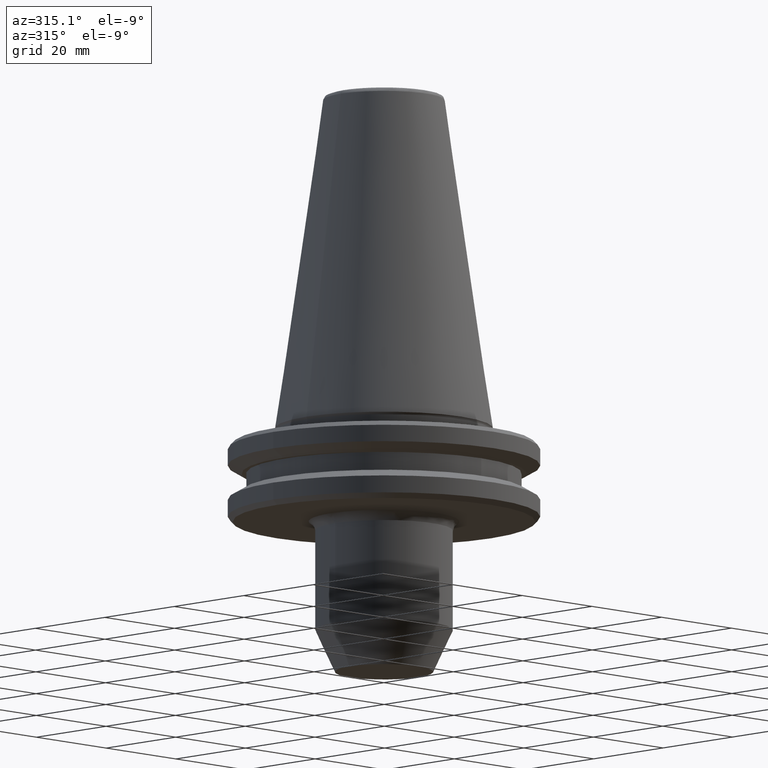
[diagram: clean part render]
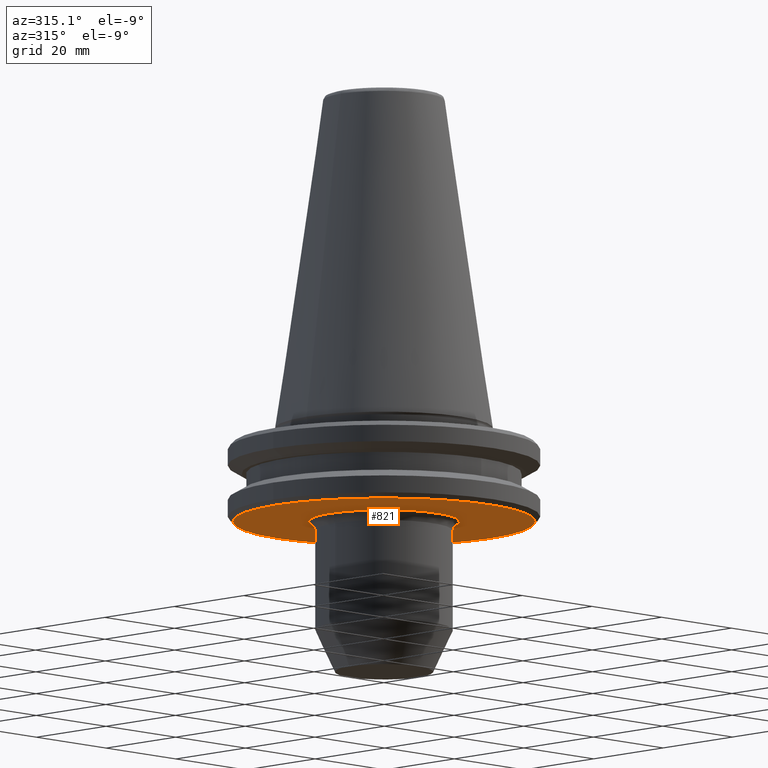
[diagram: same view with one face highlighted and labeled with its STEP entity id]
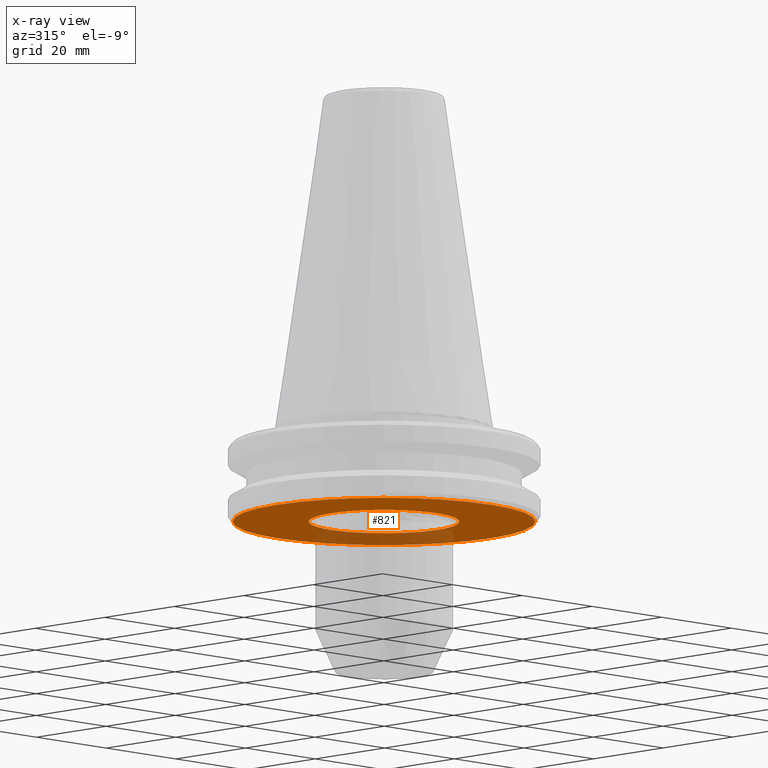
[diagram: x-ray of the same camera — body ghosted, the highlighted face saturated]
A machine part, auxiliary view. The second image highlights one B-rep face of the part: STEP entity #821.
The next image is the same camera in x-ray: the body ghosted, the highlighted face saturated — about 21% of this face is hidden behind the body in this view.
In plain terms, the highlighted planar face has unit normal (0, 0, -1).
Its self-contained STEP definition (entity closure, byte-faithful):
#87 = CIRCLE ( 'NONE', #1105, 30.75000000000072100 ) ;
#92 = CARTESIAN_POINT ( 'NONE',  ( 30.75000000000072100, 0.0000000000000000000, -19.10000000000006200 ) ) ;
#138 = CARTESIAN_POINT ( 'NONE',  ( 15.32553478998277400, 0.0000000000000000000, -19.10000000000000900 ) ) ;
#265 = DIRECTION ( 'NONE',  ( -1.000000000000000000, 0.0000000000000000000, -0.0000000000000000000 ) ) ;
#268 = DIRECTION ( 'NONE',  ( 0.0000000000000000000, 0.0000000000000000000, -1.000000000000000000 ) ) ;
#276 = PLANE ( 'NONE',  #1103 ) ;
#289 = CARTESIAN_POINT ( 'NONE',  ( 29.85996502400000800, -30.95132634999999900, -19.10000000000000100 ) ) ;
#299 = ORIENTED_EDGE ( 'NONE', *, *, #1238, .F. ) ;
#357 = ORIENTED_EDGE ( 'NONE', *, *, #413, .T. ) ;
#373 = CARTESIAN_POINT ( 'NONE',  ( -30.75000000000072100, 3.827021247335525400E-015, -19.10000000000006200 ) ) ;
#385 = EDGE_CURVE ( 'NONE', #660, #1198, #1060, .T. ) ;
#413 = EDGE_CURVE ( 'NONE', #1198, #660, #910, .T. ) ;
#516 = EDGE_CURVE ( 'NONE', #953, #1342, #87, .T. ) ;
#568 = EDGE_LOOP ( 'NONE', ( #873, #299 ) ) ;
#586 = CARTESIAN_POINT ( 'NONE',  ( 0.0000000000000000000, 0.0000000000000000000, -19.10000000000006200 ) ) ;
#592 = AXIS2_PLACEMENT_3D ( 'NONE', #586, #1309, #685 ) ;
#657 = CARTESIAN_POINT ( 'NONE',  ( -15.32553478998277200, -1.100161905259224300E-009, -19.10000000000000500 ) ) ;
#660 = VERTEX_POINT ( 'NONE', #657 ) ;
#685 = DIRECTION ( 'NONE',  ( 1.000000000000000000, 0.0000000000000000000, 0.0000000000000000000 ) ) ;
#728 = DIRECTION ( 'NONE',  ( 1.000000000000000000, 0.0000000000000000000, 0.0000000000000000000 ) ) ;
#729 = DIRECTION ( 'NONE',  ( -0.0000000000000000000, -0.0000000000000000000, 1.000000000000000000 ) ) ;
#731 = CARTESIAN_POINT ( 'NONE',  ( 0.0000000000000000000, 0.0000000000000000000, -19.10000000000006200 ) ) ;
#821 = ADVANCED_FACE ( 'NONE', ( #1041, #1223 ), #276, .T. ) ;
#847 = ORIENTED_EDGE ( 'NONE', *, *, #385, .T. ) ;
#873 = ORIENTED_EDGE ( 'NONE', *, *, #516, .F. ) ;
#910 =( BOUNDED_CURVE ( )  B_SPLINE_CURVE ( 3, ( #1190, #1186, #1180, #1178 ),
 .UNSPECIFIED., .F., .F. ) 
 B_SPLINE_CURVE_WITH_KNOTS ( ( 4, 4 ),
 ( 3.622134686560933600E-018, 0.04815164210499616600 ),
 .UNSPECIFIED. ) 
 CURVE ( )  GEOMETRIC_REPRESENTATION_ITEM ( )  RATIONAL_B_SPLINE_CURVE ( ( 0.9661355370306736700, 0.3220451790102242800, 0.3220451790102242800, 0.9661355370306736700 ) ) 
 REPRESENTATION_ITEM ( '' )  );
#942 = CIRCLE ( 'NONE', #592, 30.75000000000072100 ) ;
#953 = VERTEX_POINT ( 'NONE', #92 ) ;
#970 = EDGE_LOOP ( 'NONE', ( #357, #847 ) ) ;
#1041 = FACE_BOUND ( 'NONE', #970, .T. ) ;
#1060 =( BOUNDED_CURVE ( )  B_SPLINE_CURVE ( 3, ( #1224, #1234, #1233, #1205 ),
 .UNSPECIFIED., .F., .T. ) 
 B_SPLINE_CURVE_WITH_KNOTS ( ( 4, 4 ),
 ( 4.673981251165245600E-013, 0.04815164210373975400 ),
 .UNSPECIFIED. ) 
 CURVE ( )  GEOMETRIC_REPRESENTATION_ITEM ( )  RATIONAL_B_SPLINE_CURVE ( ( 0.9661355370306724500, 0.3220451790102238900, 0.3220451790102238900, 0.9661355370306724500 ) ) 
 REPRESENTATION_ITEM ( '' )  );
#1103 = AXIS2_PLACEMENT_3D ( 'NONE', #289, #268, #265 ) ;
#1105 = AXIS2_PLACEMENT_3D ( 'NONE', #731, #729, #728 ) ;
#1178 = CARTESIAN_POINT ( 'NONE',  ( -15.32553478998277200, -1.100161905259224100E-009, -19.10000000000000500 ) ) ;
#1180 = CARTESIAN_POINT ( 'NONE',  ( -15.32553478998280200, 30.65106958078505200, -19.09999999999999400 ) ) ;
#1186 = CARTESIAN_POINT ( 'NONE',  ( 15.32553478998280200, 30.65106958078505200, -19.09999999999999400 ) ) ;
#1190 = CARTESIAN_POINT ( 'NONE',  ( 15.32553478998277400, 0.0000000000000000000, -19.10000000000000900 ) ) ;
#1198 = VERTEX_POINT ( 'NONE', #138 ) ;
#1205 = CARTESIAN_POINT ( 'NONE',  ( 15.32553478998277500, 0.0000000000000000000, -19.10000000000000900 ) ) ;
#1223 = FACE_OUTER_BOUND ( 'NONE', #568, .T. ) ;
#1224 = CARTESIAN_POINT ( 'NONE',  ( -15.32553478998277200, -1.100161905259224300E-009, -19.10000000000000500 ) ) ;
#1233 = CARTESIAN_POINT ( 'NONE',  ( 15.32553478998279500, -30.65106958078503800, -19.09999999999999800 ) ) ;
#1234 = CARTESIAN_POINT ( 'NONE',  ( -15.32553478998279500, -30.65106958078503800, -19.09999999999999800 ) ) ;
#1238 = EDGE_CURVE ( 'NONE', #1342, #953, #942, .T. ) ;
#1309 = DIRECTION ( 'NONE',  ( -0.0000000000000000000, -0.0000000000000000000, 1.000000000000000000 ) ) ;
#1342 = VERTEX_POINT ( 'NONE', #373 ) ;